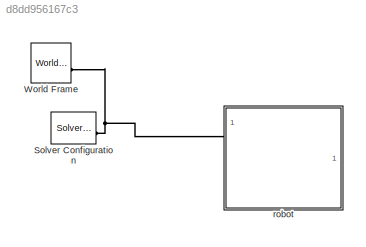
MODEL slx_d8dd956167c3
KIND model
CONFIG AbsTol = auto
CONFIG EnableMultiTasking = off
CONFIG FixedStep = auto
CONFIG MaxStep = auto
CONFIG MinStep = auto
CONFIG RelTol = 1e-3
CONFIG SampleTimeConstraint = Unconstrained
CONFIG SolverName = VariableStepAuto
CONFIG StartTime = 0.0
CONFIG StopTime = 10.0
BLOCK [Reference] Solver Configuration  REF=nesl_utility/Solver
Configuration
  SourceBlock = nesl_utility/Solver\nConfiguration
  SourceType = Solver\nConfiguration
BLOCK [Reference] World Frame  REF=sm_lib/Frames and
Transforms/World Frame
  SourceBlock = sm_lib/Frames and\nTransforms/World Frame
  SourceType = World Frame
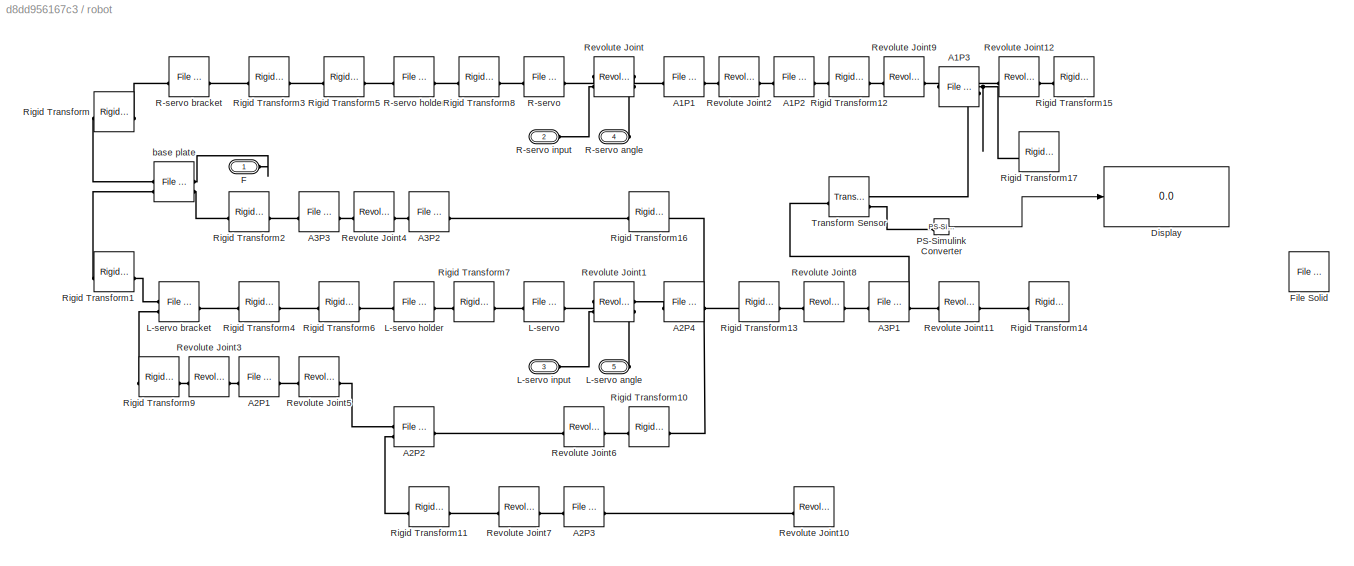
BLOCK [SubSystem] robot
BLOCK [Reference] robot/A1P1  REF=sm_lib/Body Elements/File Solid
  SourceBlock = sm_lib/Body Elements/File Solid
  SourceType = File Solid
BLOCK [Reference] robot/A1P2  REF=sm_lib/Body Elements/File Solid
  SourceBlock = sm_lib/Body Elements/File Solid
  SourceType = File Solid
BLOCK [Reference] robot/A1P3  REF=sm_lib/Body Elements/File Solid
  SourceBlock = sm_lib/Body Elements/File Solid
  SourceType = File Solid
BLOCK [Reference] robot/A2P1  REF=sm_lib/Body Elements/File Solid
  SourceBlock = sm_lib/Body Elements/File Solid
  SourceType = File Solid
BLOCK [Reference] robot/A2P2  REF=sm_lib/Body Elements/File Solid
  SourceBlock = sm_lib/Body Elements/File Solid
  SourceType = File Solid
BLOCK [Reference] robot/A2P3  REF=sm_lib/Body Elements/File Solid
  SourceBlock = sm_lib/Body Elements/File Solid
  SourceType = File Solid
BLOCK [Reference] robot/A2P4  REF=sm_lib/Body Elements/File Solid
  SourceBlock = sm_lib/Body Elements/File Solid
  SourceType = File Solid
BLOCK [Reference] robot/A3P1  REF=sm_lib/Body Elements/File Solid
  SourceBlock = sm_lib/Body Elements/File Solid
  SourceType = File Solid
BLOCK [Reference] robot/A3P2   REF=sm_lib/Body Elements/File Solid
  SourceBlock = sm_lib/Body Elements/File Solid
  SourceType = File Solid
BLOCK [Reference] robot/A3P3  REF=sm_lib/Body Elements/File Solid
  SourceBlock = sm_lib/Body Elements/File Solid
  SourceType = File Solid
BLOCK [Display] robot/Display
  Decimation = 1
  Format = long
BLOCK [PMIOPort] robot/F
  Side = Left
BLOCK [Reference] robot/File Solid  REF=sm_lib/Body Elements/File Solid
  SourceBlock = sm_lib/Body Elements/File Solid
  SourceType = File Solid
BLOCK [Reference] robot/L-servo  REF=sm_lib/Body Elements/File Solid
  SourceBlock = sm_lib/Body Elements/File Solid
  SourceType = File Solid
BLOCK [PMIOPort] robot/L-servo angle
  Port = 5
  Side = Left
BLOCK [Reference] robot/L-servo bracket  REF=sm_lib/Body Elements/File Solid
  SourceBlock = sm_lib/Body Elements/File Solid
  SourceType = File Solid
BLOCK [Reference] robot/L-servo holder  REF=sm_lib/Body Elements/File Solid
  SourceBlock = sm_lib/Body Elements/File Solid
  SourceType = File Solid
BLOCK [PMIOPort] robot/L-servo input 
  Port = 3
  Side = Left
BLOCK [Reference] robot/PS-Simulink Converter  REF=nesl_utility/PS-Simulink
Converter
  SourceBlock = nesl_utility/PS-Simulink\nConverter
  SourceType = PS-Simulink\nConverter
BLOCK [Reference] robot/R-servo  REF=sm_lib/Body Elements/File Solid
  SourceBlock = sm_lib/Body Elements/File Solid
  SourceType = File Solid
BLOCK [PMIOPort] robot/R-servo angle
  Port = 4
  Side = Left
BLOCK [Reference] robot/R-servo bracket   REF=sm_lib/Body Elements/File Solid
  SourceBlock = sm_lib/Body Elements/File Solid
  SourceType = File Solid
BLOCK [Reference] robot/R-servo holder  REF=sm_lib/Body Elements/File Solid
  SourceBlock = sm_lib/Body Elements/File Solid
  SourceType = File Solid
BLOCK [PMIOPort] robot/R-servo input
  Port = 2
  Side = Left
BLOCK [Reference] robot/Revolute Joint  REF=sm_lib/Joints/Revolute Joint
  SourceBlock = sm_lib/Joints/Revolute Joint
  SourceType = Revolute Joint
BLOCK [Reference] robot/Revolute Joint1  REF=sm_lib/Joints/Revolute Joint
  SourceBlock = sm_lib/Joints/Revolute Joint
  SourceType = Revolute Joint
BLOCK [Reference] robot/Revolute Joint10  REF=sm_lib/Joints/Revolute Joint
  SourceBlock = sm_lib/Joints/Revolute Joint
  SourceType = Revolute Joint
BLOCK [Reference] robot/Revolute Joint11  REF=sm_lib/Joints/Revolute Joint
  SourceBlock = sm_lib/Joints/Revolute Joint
  SourceType = Revolute Joint
BLOCK [Reference] robot/Revolute Joint12  REF=sm_lib/Joints/Revolute Joint
  SourceBlock = sm_lib/Joints/Revolute Joint
  SourceType = Revolute Joint
BLOCK [Reference] robot/Revolute Joint2  REF=sm_lib/Joints/Revolute Joint
  SourceBlock = sm_lib/Joints/Revolute Joint
  SourceType = Revolute Joint
BLOCK [Reference] robot/Revolute Joint3  REF=sm_lib/Joints/Revolute Joint
  SourceBlock = sm_lib/Joints/Revolute Joint
  SourceType = Revolute Joint
BLOCK [Reference] robot/Revolute Joint4  REF=sm_lib/Joints/Revolute Joint
  SourceBlock = sm_lib/Joints/Revolute Joint
  SourceType = Revolute Joint
BLOCK [Reference] robot/Revolute Joint5  REF=sm_lib/Joints/Revolute Joint
  SourceBlock = sm_lib/Joints/Revolute Joint
  SourceType = Revolute Joint
BLOCK [Reference] robot/Revolute Joint6  REF=sm_lib/Joints/Revolute Joint
  SourceBlock = sm_lib/Joints/Revolute Joint
  SourceType = Revolute Joint
BLOCK [Reference] robot/Revolute Joint7  REF=sm_lib/Joints/Revolute Joint
  SourceBlock = sm_lib/Joints/Revolute Joint
  SourceType = Revolute Joint
BLOCK [Reference] robot/Revolute Joint8  REF=sm_lib/Joints/Revolute Joint
  SourceBlock = sm_lib/Joints/Revolute Joint
  SourceType = Revolute Joint
BLOCK [Reference] robot/Revolute Joint9  REF=sm_lib/Joints/Revolute Joint
  SourceBlock = sm_lib/Joints/Revolute Joint
  SourceType = Revolute Joint
BLOCK [Reference] robot/Rigid Transform  REF=sm_lib/Frames and
Transforms/Rigid
Transform
  SourceBlock = sm_lib/Frames and\nTransforms/Rigid\nTransform
  SourceType = Rigid\nTransform
BLOCK [Reference] robot/Rigid Transform1  REF=sm_lib/Frames and
Transforms/Rigid
Transform
  SourceBlock = sm_lib/Frames and\nTransforms/Rigid\nTransform
  SourceType = Rigid\nTransform
BLOCK [Reference] robot/Rigid Transform10  REF=sm_lib/Frames and
Transforms/Rigid
Transform
  SourceBlock = sm_lib/Frames and\nTransforms/Rigid\nTransform
  SourceType = Rigid\nTransform
BLOCK [Reference] robot/Rigid Transform11  REF=sm_lib/Frames and
Transforms/Rigid
Transform
  SourceBlock = sm_lib/Frames and\nTransforms/Rigid\nTransform
  SourceType = Rigid\nTransform
BLOCK [Reference] robot/Rigid Transform12  REF=sm_lib/Frames and
Transforms/Rigid
Transform
  SourceBlock = sm_lib/Frames and\nTransforms/Rigid\nTransform
  SourceType = Rigid\nTransform
BLOCK [Reference] robot/Rigid Transform13  REF=sm_lib/Frames and
Transforms/Rigid
Transform
  SourceBlock = sm_lib/Frames and\nTransforms/Rigid\nTransform
  SourceType = Rigid\nTransform
BLOCK [Reference] robot/Rigid Transform14  REF=sm_lib/Frames and
Transforms/Rigid
Transform
  SourceBlock = sm_lib/Frames and\nTransforms/Rigid\nTransform
  SourceType = Rigid\nTransform
BLOCK [Reference] robot/Rigid Transform15  REF=sm_lib/Frames and
Transforms/Rigid
Transform
  SourceBlock = sm_lib/Frames and\nTransforms/Rigid\nTransform
  SourceType = Rigid\nTransform
BLOCK [Reference] robot/Rigid Transform16  REF=sm_lib/Frames and
Transforms/Rigid
Transform
  SourceBlock = sm_lib/Frames and\nTransforms/Rigid\nTransform
  SourceType = Rigid\nTransform
BLOCK [Reference] robot/Rigid Transform17  REF=sm_lib/Frames and
Transforms/Rigid
Transform
  SourceBlock = sm_lib/Frames and\nTransforms/Rigid\nTransform
  SourceType = Rigid\nTransform
BLOCK [Reference] robot/Rigid Transform2  REF=sm_lib/Frames and
Transforms/Rigid
Transform
  SourceBlock = sm_lib/Frames and\nTransforms/Rigid\nTransform
  SourceType = Rigid\nTransform
BLOCK [Reference] robot/Rigid Transform3  REF=sm_lib/Frames and
Transforms/Rigid
Transform
  SourceBlock = sm_lib/Frames and\nTransforms/Rigid\nTransform
  SourceType = Rigid\nTransform
BLOCK [Reference] robot/Rigid Transform4  REF=sm_lib/Frames and
Transforms/Rigid
Transform
  SourceBlock = sm_lib/Frames and\nTransforms/Rigid\nTransform
  SourceType = Rigid\nTransform
BLOCK [Reference] robot/Rigid Transform5  REF=sm_lib/Frames and
Transforms/Rigid
Transform
  SourceBlock = sm_lib/Frames and\nTransforms/Rigid\nTransform
  SourceType = Rigid\nTransform
BLOCK [Reference] robot/Rigid Transform6  REF=sm_lib/Frames and
Transforms/Rigid
Transform
  SourceBlock = sm_lib/Frames and\nTransforms/Rigid\nTransform
  SourceType = Rigid\nTransform
BLOCK [Reference] robot/Rigid Transform7  REF=sm_lib/Frames and
Transforms/Rigid
Transform
  SourceBlock = sm_lib/Frames and\nTransforms/Rigid\nTransform
  SourceType = Rigid\nTransform
BLOCK [Reference] robot/Rigid Transform8  REF=sm_lib/Frames and
Transforms/Rigid
Transform
  SourceBlock = sm_lib/Frames and\nTransforms/Rigid\nTransform
  SourceType = Rigid\nTransform
BLOCK [Reference] robot/Rigid Transform9  REF=sm_lib/Frames and
Transforms/Rigid
Transform
  SourceBlock = sm_lib/Frames and\nTransforms/Rigid\nTransform
  SourceType = Rigid\nTransform
BLOCK [Reference] robot/Transform Sensor  REF=sm_lib/Frames and
Transforms/Transform
Sensor
  SourceBlock = sm_lib/Frames and\nTransforms/Transform\nSensor
  SourceType = Transform\nSensor
BLOCK [Reference] robot/base plate  REF=sm_lib/Body Elements/File Solid
  SourceBlock = sm_lib/Body Elements/File Solid
  SourceType = File Solid
LINE robot/PS-Simulink Converter:1 -> robot/Display:1
PNET net1: Solver Configuration:RConn1 -- World Frame:RConn1 -- robot:LConn1
PLINE robot/A1P1:LConn1 -- robot/Revolute Joint:RConn1
PLINE robot/A1P1:RConn1 -- robot/Revolute Joint2:LConn1
PLINE robot/A1P2:LConn1 -- robot/Revolute Joint2:RConn1
PLINE robot/A1P2:RConn1 -- robot/Rigid Transform12:LConn1
PLINE robot/A1P3:LConn1 -- robot/Revolute Joint9:RConn1
PNET net2: robot/A1P3:RConn1 -- robot/Revolute Joint12:LConn1 -- robot/Rigid Transform17:LConn1 -- robot/Transform Sensor:RConn1
PLINE robot/A2P1:LConn1 -- robot/Revolute Joint3:RConn1
PLINE robot/A2P1:RConn1 -- robot/Revolute Joint5:LConn1
PLINE robot/A2P2:LConn1 -- robot/Revolute Joint5:RConn1
PLINE robot/A2P2:LConn2 -- robot/Rigid Transform11:LConn1
PLINE robot/A2P2:RConn1 -- robot/Revolute Joint6:LConn1
PLINE robot/A2P3:LConn1 -- robot/Revolute Joint7:RConn1
PLINE robot/A2P3:RConn1 -- robot/Revolute Joint10:LConn1
PLINE robot/A2P4:LConn1 -- robot/Revolute Joint1:RConn1
PNET net3: robot/A2P4:RConn1 -- robot/Rigid Transform10:RConn1 -- robot/Rigid Transform13:LConn1 -- robot/Rigid Transform16:RConn1
PLINE robot/A3P1:LConn1 -- robot/Revolute Joint8:RConn1
PNET net4: robot/A3P1:RConn1 -- robot/Revolute Joint11:LConn1 -- robot/Transform Sensor:LConn1
PLINE robot/A3P2 :LConn1 -- robot/Revolute Joint4:RConn1
PLINE robot/A3P2 :RConn1 -- robot/Rigid Transform16:LConn1
PLINE robot/A3P3:LConn1 -- robot/Rigid Transform2:RConn1
PLINE robot/A3P3:RConn1 -- robot/Revolute Joint4:LConn1
PLINE robot/F:RConn1 -- robot/base plate:RConn1
PLINE robot/L-servo angle:RConn1 -- robot/Revolute Joint1:RConn2
PLINE robot/L-servo bracket:LConn1 -- robot/Rigid Transform1:RConn1
PLINE robot/L-servo bracket:LConn2 -- robot/Rigid Transform9:LConn1
PLINE robot/L-servo bracket:RConn1 -- robot/Rigid Transform4:LConn1
PLINE robot/L-servo holder:LConn1 -- robot/Rigid Transform6:RConn1
PLINE robot/L-servo holder:RConn1 -- robot/Rigid Transform7:LConn1
PLINE robot/L-servo input :RConn1 -- robot/Revolute Joint1:LConn2
PLINE robot/L-servo:LConn1 -- robot/Rigid Transform7:RConn1
PLINE robot/L-servo:RConn1 -- robot/Revolute Joint1:LConn1
PLINE robot/PS-Simulink Converter:LConn1 -- robot/Transform Sensor:RConn2
PLINE robot/R-servo angle:RConn1 -- robot/Revolute Joint:RConn2
PLINE robot/R-servo bracket :LConn1 -- robot/Rigid Transform:RConn1
PLINE robot/R-servo bracket :RConn1 -- robot/Rigid Transform3:LConn1
PLINE robot/R-servo holder:LConn1 -- robot/Rigid Transform5:RConn1
PLINE robot/R-servo holder:RConn1 -- robot/Rigid Transform8:LConn1
PLINE robot/R-servo input:RConn1 -- robot/Revolute Joint:LConn2
PLINE robot/R-servo:LConn1 -- robot/Rigid Transform8:RConn1
PLINE robot/R-servo:RConn1 -- robot/Revolute Joint:LConn1
PLINE robot/Revolute Joint11:RConn1 -- robot/Rigid Transform14:LConn1
PLINE robot/Revolute Joint12:RConn1 -- robot/Rigid Transform15:LConn1
PLINE robot/Revolute Joint3:LConn1 -- robot/Rigid Transform9:RConn1
PLINE robot/Revolute Joint6:RConn1 -- robot/Rigid Transform10:LConn1
PLINE robot/Revolute Joint7:LConn1 -- robot/Rigid Transform11:RConn1
PLINE robot/Revolute Joint8:LConn1 -- robot/Rigid Transform13:RConn1
PLINE robot/Revolute Joint9:LConn1 -- robot/Rigid Transform12:RConn1
PLINE robot/Rigid Transform1:LConn1 -- robot/base plate:LConn2
PLINE robot/Rigid Transform2:LConn1 -- robot/base plate:RConn2
PLINE robot/Rigid Transform3:RConn1 -- robot/Rigid Transform5:LConn1
PLINE robot/Rigid Transform4:RConn1 -- robot/Rigid Transform6:LConn1
PLINE robot/Rigid Transform:LConn1 -- robot/base plate:LConn1
note: PNET lines group multi-terminal physical nets as a canonical sorted terminal list (undirected conserving connections); 2-terminal nets keep the pairwise PLINE form
